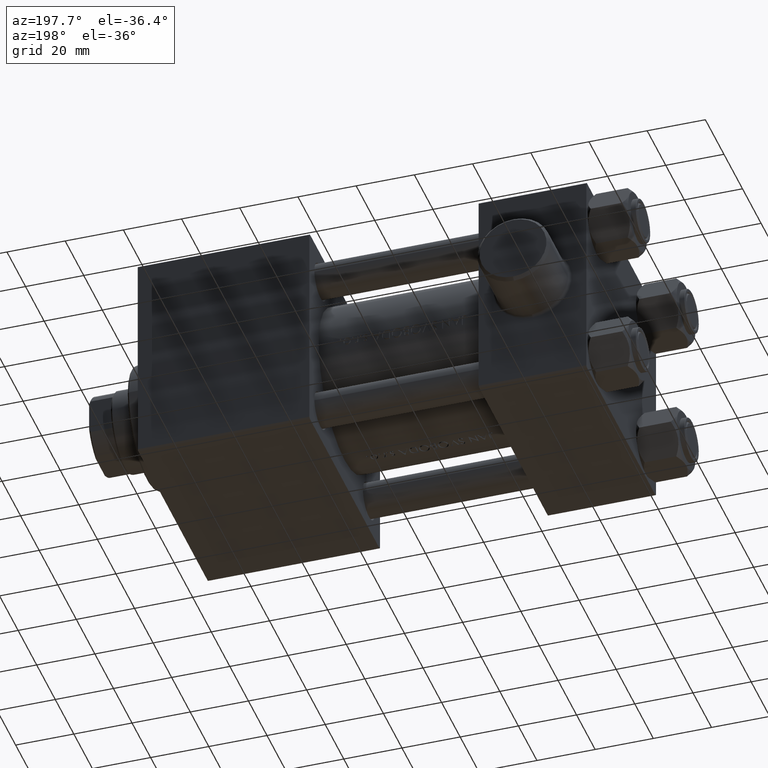
[diagram: clean part render]
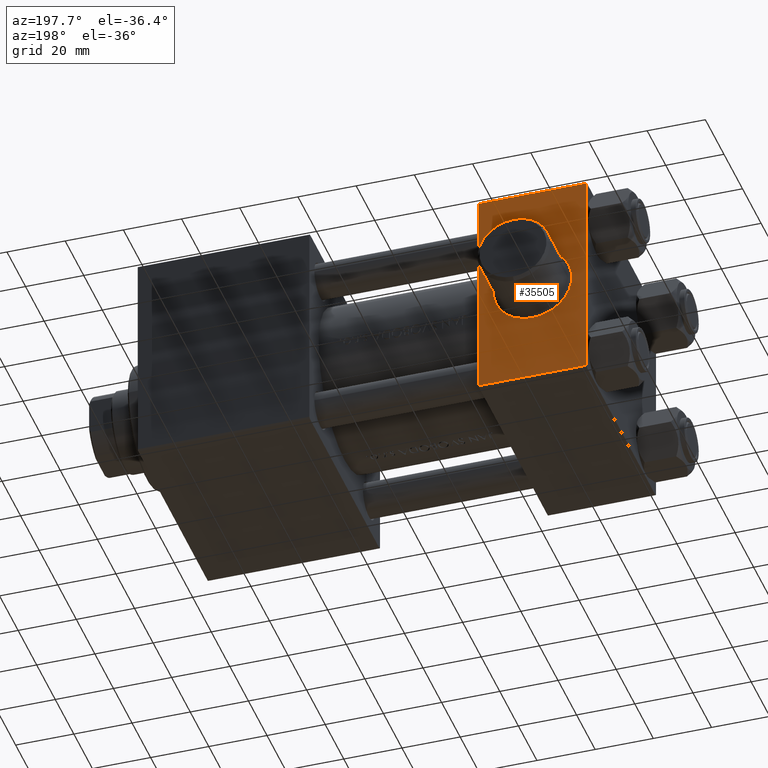
[diagram: same view with one face highlighted and labeled with its STEP entity id]
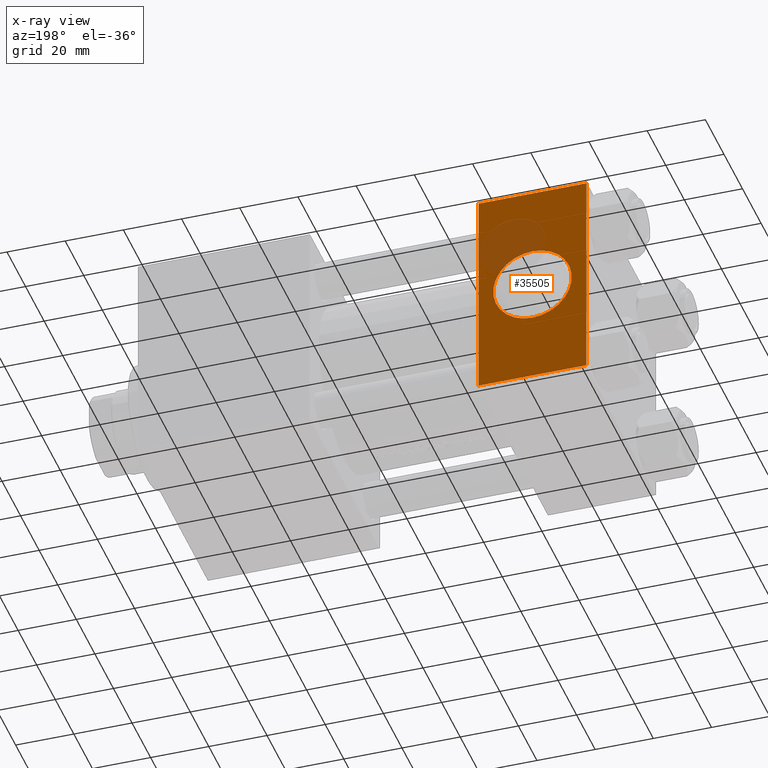
[diagram: x-ray of the same camera — body ghosted, the highlighted face saturated]
A machine part, auxiliary view. The second image highlights one B-rep face of the part: STEP entity #35505.
The next image is the same camera in x-ray: the body ghosted, the highlighted face saturated — about 15% of this face is hidden behind the body in this view.
In plain terms, the highlighted planar face has unit normal (0, 1, 0).
Its self-contained STEP definition (entity closure, byte-faithful):
#286 = EDGE_CURVE ( 'NONE', #29677, #28812, #18453, .T. ) ;
#1400 = VECTOR ( 'NONE', #45291, 1000.000000000000000 ) ;
#1465 = VERTEX_POINT ( 'NONE', #28949 ) ;
#3808 = CARTESIAN_POINT ( 'NONE',  ( 18.50000000000000000, 37.49999999999999289, -3.556183125752453755E-15 ) ) ;
#4624 = ORIENTED_EDGE ( 'NONE', *, *, #39144, .T. ) ;
#5552 = AXIS2_PLACEMENT_3D ( 'NONE', #36721, #29904, #26630 ) ;
#6449 = DIRECTION ( 'NONE',  ( 1.000000000000000000, 0.000000000000000000, 0.000000000000000000 ) ) ;
#6783 = CARTESIAN_POINT ( 'NONE',  ( 0.000000000000000000, 37.49999999999999289, -36.99999999999998579 ) ) ;
#6991 = DIRECTION ( 'NONE',  ( -1.000000000000000000, 0.000000000000000000, 0.000000000000000000 ) ) ;
#7046 = CARTESIAN_POINT ( 'NONE',  ( 37.00000000000000000, 37.49999999999999289, -36.99999999999998579 ) ) ;
#7083 = VERTEX_POINT ( 'NONE', #26777 ) ;
#7533 = CARTESIAN_POINT ( 'NONE',  ( 18.50000000000000000, 37.49999999999999289, -13.50000000000000533 ) ) ;
#10031 = CIRCLE ( 'NONE', #18966, 13.50000000000000178 ) ;
#11183 = LINE ( 'NONE', #39067, #26084 ) ;
#12249 = AXIS2_PLACEMENT_3D ( 'NONE', #33848, #19341, #34077 ) ;
#12941 = VERTEX_POINT ( 'NONE', #7533 ) ;
#12984 = ORIENTED_EDGE ( 'NONE', *, *, #41160, .T. ) ;
#16771 = EDGE_LOOP ( 'NONE', ( #4624, #12984 ) ) ;
#17413 = EDGE_CURVE ( 'NONE', #1465, #34238, #34764, .T. ) ;
#18081 = DIRECTION ( 'NONE',  ( 0.000000000000000000, -1.000000000000000000, -0.000000000000000000 ) ) ;
#18453 = LINE ( 'NONE', #20081, #25358 ) ;
#18966 = AXIS2_PLACEMENT_3D ( 'NONE', #3808, #18081, #43120 ) ;
#19325 = EDGE_CURVE ( 'NONE', #29677, #1465, #27512, .T. ) ;
#19341 = DIRECTION ( 'NONE',  ( 0.000000000000000000, -1.000000000000000000, -0.000000000000000000 ) ) ;
#20081 = CARTESIAN_POINT ( 'NONE',  ( 0.000000000000000000, 37.49999999999999289, 37.50000000000000000 ) ) ;
#20210 = ORIENTED_EDGE ( 'NONE', *, *, #286, .F. ) ;
#21962 = CIRCLE ( 'NONE', #12249, 13.50000000000000178 ) ;
#22949 = CARTESIAN_POINT ( 'NONE',  ( 0.000000000000000000, 37.49999999999999289, 37.00000000000000000 ) ) ;
#22953 = EDGE_CURVE ( 'NONE', #34238, #28812, #11183, .T. ) ;
#23005 = ORIENTED_EDGE ( 'NONE', *, *, #19325, .T. ) ;
#23480 = ORIENTED_EDGE ( 'NONE', *, *, #22953, .T. ) ;
#23932 = EDGE_LOOP ( 'NONE', ( #27196, #23480, #20210, #23005 ) ) ;
#24005 = CARTESIAN_POINT ( 'NONE',  ( 37.00000000000000000, 37.49999999999999289, 37.50000000000000000 ) ) ;
#25358 = VECTOR ( 'NONE', #38344, 1000.000000000000000 ) ;
#26084 = VECTOR ( 'NONE', #6991, 1000.000000000000000 ) ;
#26630 = DIRECTION ( 'NONE',  ( 0.000000000000000000, -0.000000000000000000, 1.000000000000000000 ) ) ;
#26777 = CARTESIAN_POINT ( 'NONE',  ( 18.50000000000000000, 37.49999999999999289, 13.49999999999999822 ) ) ;
#27196 = ORIENTED_EDGE ( 'NONE', *, *, #17413, .T. ) ;
#27512 = LINE ( 'NONE', #30553, #35808 ) ;
#28812 = VERTEX_POINT ( 'NONE', #6783 ) ;
#28949 = CARTESIAN_POINT ( 'NONE',  ( 37.00000000000000000, 37.49999999999999289, 37.00000000000000000 ) ) ;
#29677 = VERTEX_POINT ( 'NONE', #22949 ) ;
#29678 = FACE_OUTER_BOUND ( 'NONE', #23932, .T. ) ;
#29904 = DIRECTION ( 'NONE',  ( -0.000000000000000000, 1.000000000000000000, 0.000000000000000000 ) ) ;
#30553 = CARTESIAN_POINT ( 'NONE',  ( 37.00000000000000000, 37.49999999999999289, 37.00000000000000000 ) ) ;
#33848 = CARTESIAN_POINT ( 'NONE',  ( 18.50000000000000000, 37.49999999999999289, -3.556183125752453755E-15 ) ) ;
#34077 = DIRECTION ( 'NONE',  ( 0.000000000000000000, 0.000000000000000000, 1.000000000000000000 ) ) ;
#34238 = VERTEX_POINT ( 'NONE', #7046 ) ;
#34764 = LINE ( 'NONE', #24005, #1400 ) ;
#35505 = ADVANCED_FACE ( 'NONE', ( #40930, #29678 ), #37183, .T. ) ;
#35808 = VECTOR ( 'NONE', #6449, 1000.000000000000000 ) ;
#36721 = CARTESIAN_POINT ( 'NONE',  ( 37.00000000000000000, 37.49999999999999289, 37.50000000000000000 ) ) ;
#37183 = PLANE ( 'NONE',  #5552 ) ;
#38344 = DIRECTION ( 'NONE',  ( 0.000000000000000000, 0.000000000000000000, -1.000000000000000000 ) ) ;
#39067 = CARTESIAN_POINT ( 'NONE',  ( 37.00000000000000000, 37.49999999999999289, -36.99999999999998579 ) ) ;
#39144 = EDGE_CURVE ( 'NONE', #7083, #12941, #21962, .T. ) ;
#40930 = FACE_BOUND ( 'NONE', #16771, .T. ) ;
#41160 = EDGE_CURVE ( 'NONE', #12941, #7083, #10031, .T. ) ;
#43120 = DIRECTION ( 'NONE',  ( 0.000000000000000000, 0.000000000000000000, 1.000000000000000000 ) ) ;
#45291 = DIRECTION ( 'NONE',  ( 0.000000000000000000, 0.000000000000000000, -1.000000000000000000 ) ) ;